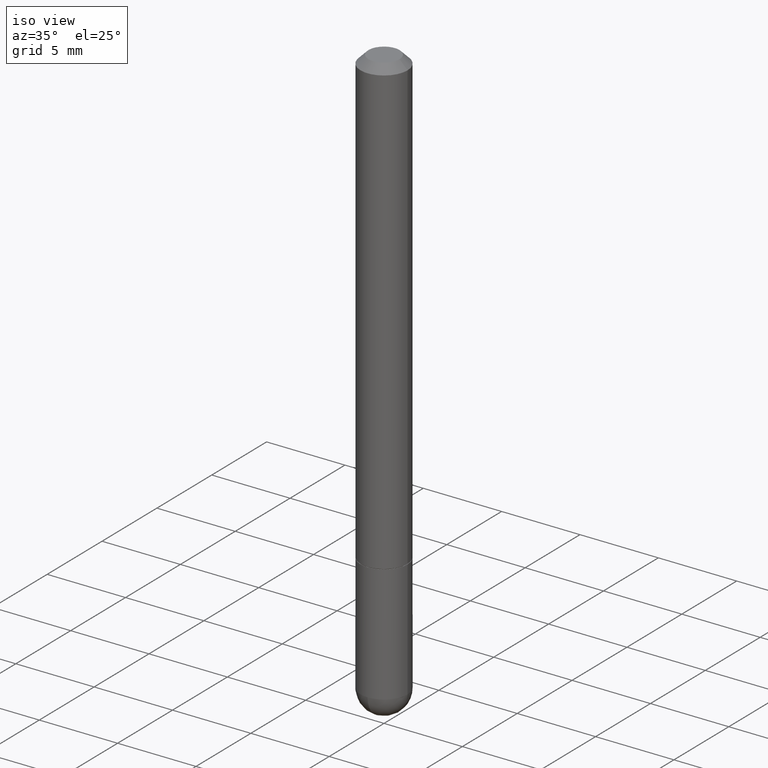
[diagram: clean part render]
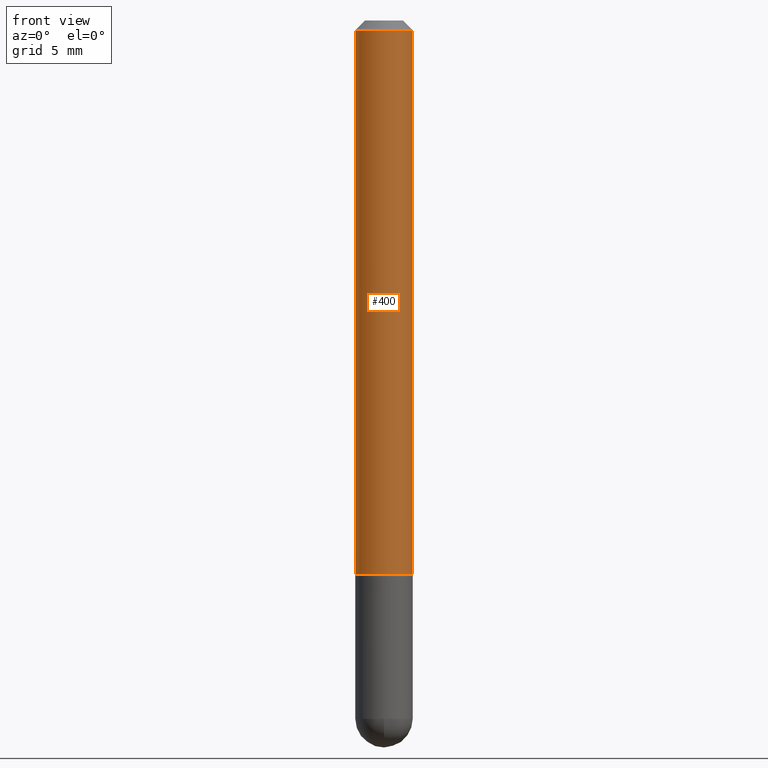
[diagram: tour spotlight — one face highlighted and labeled with its STEP entity id]
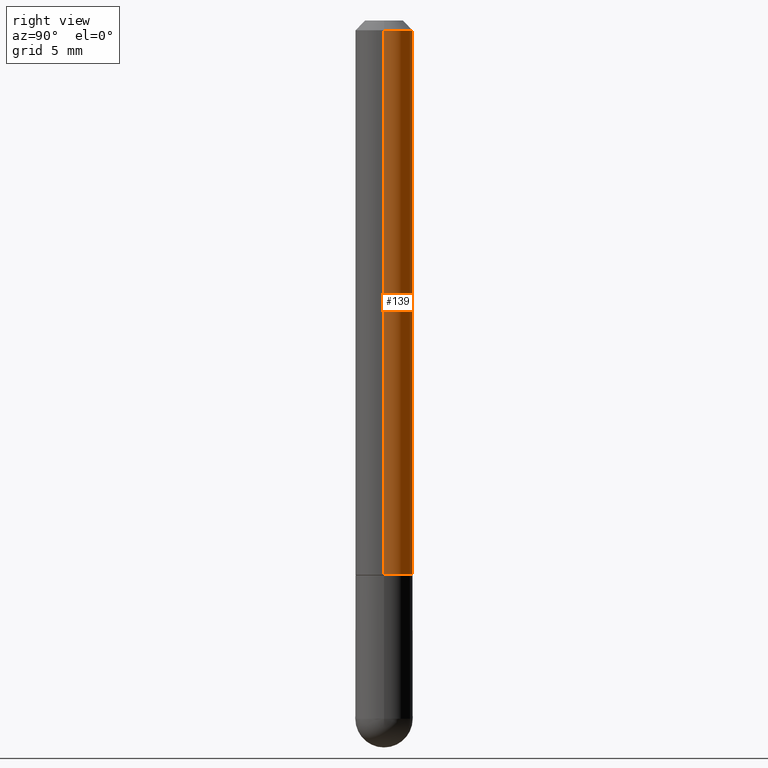
[diagram: tour spotlight — one face highlighted and labeled with its STEP entity id]
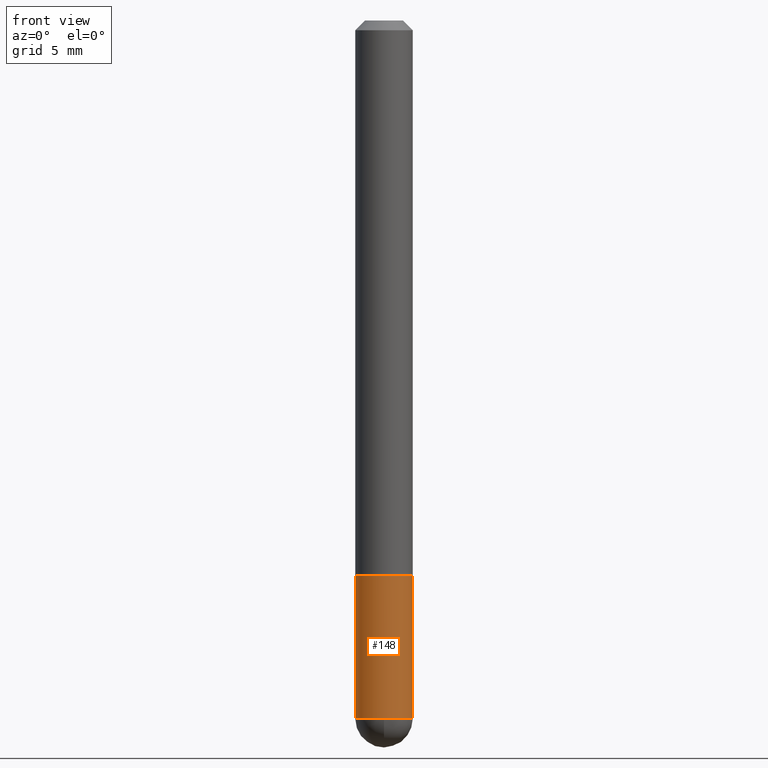
[diagram: tour spotlight — one face highlighted and labeled with its STEP entity id]
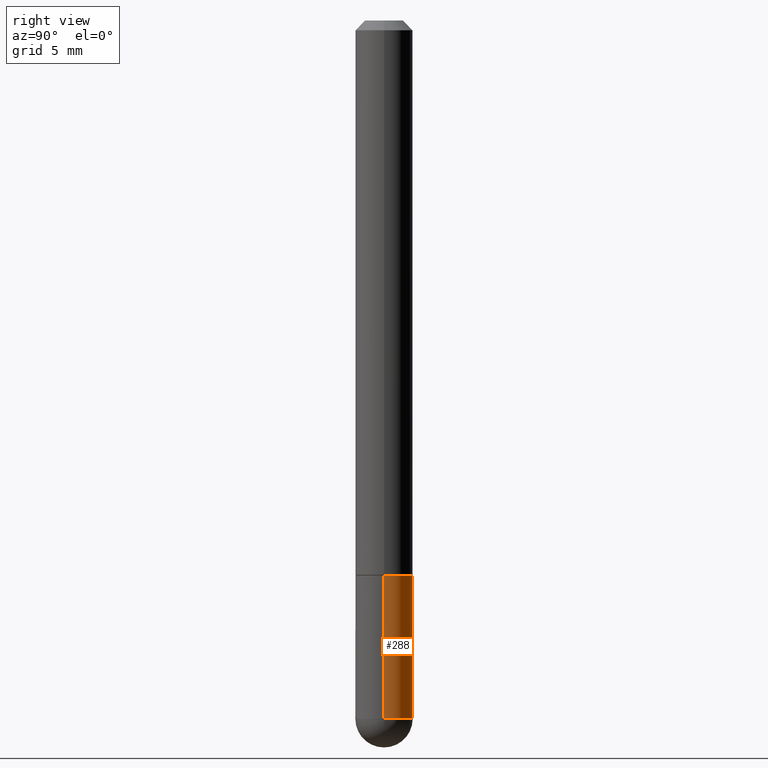
[diagram: tour spotlight — one face highlighted and labeled with its STEP entity id]
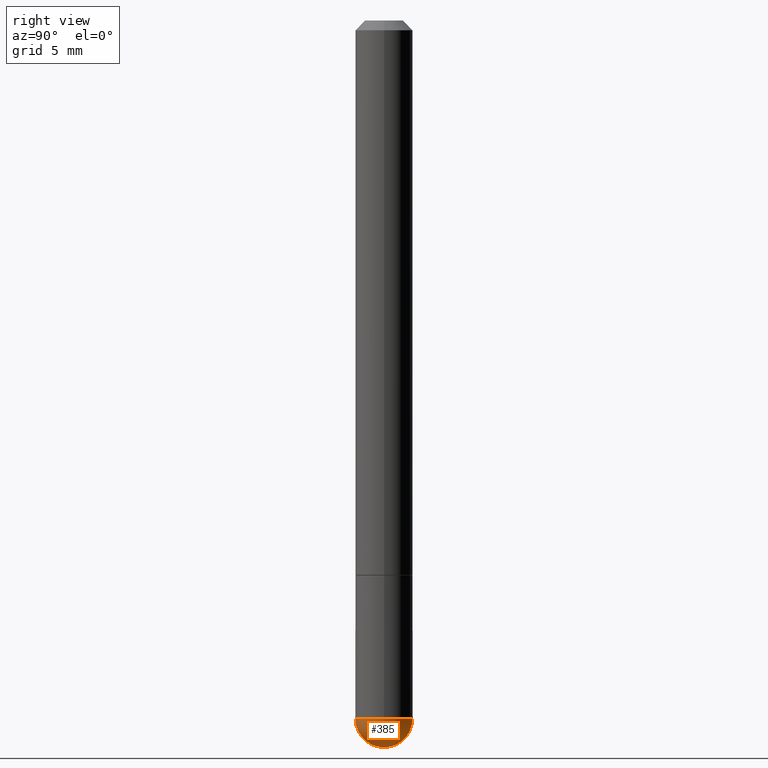
[diagram: tour spotlight — one face highlighted and labeled with its STEP entity id]
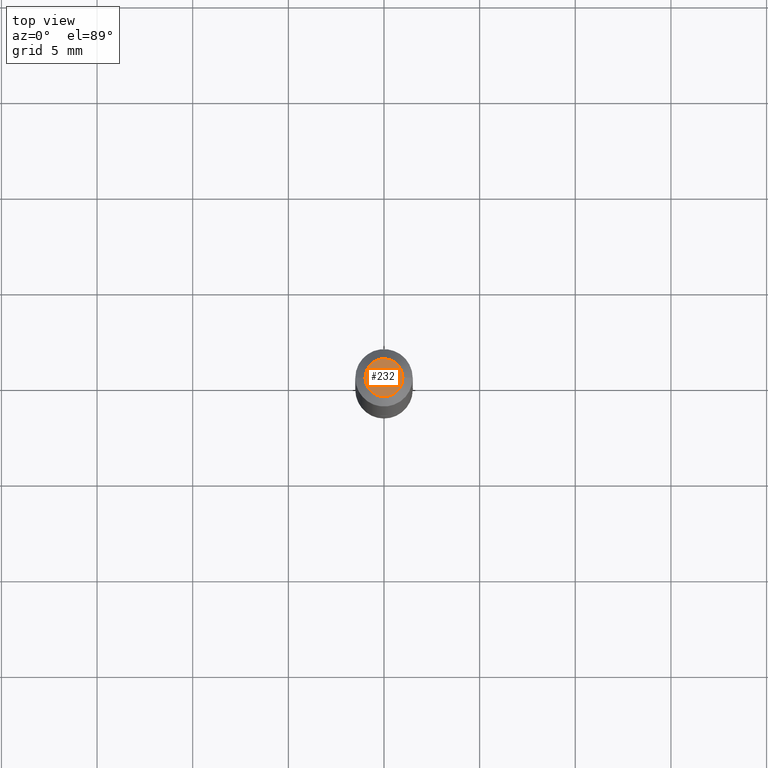
[diagram: tour spotlight — one face highlighted and labeled with its STEP entity id]
A machine part: a face-by-face anatomy tour. The part has 13 B-rep faces; the first image is the clean iso view, then the 6 largest visible faces are spotlighted one at a time (largest first), each with its STEP entity span.

Face 1 — front view, entity #400. In plain terms, the highlighted cylindrical surface (edge-blend (fillet) strip) has radius 1.4999 mm, axis along (-0, 0, 1).
Definition (entity closure, byte-faithful):
#2 = CARTESIAN_POINT ( 'NONE',  ( 4.890937612370278413E-31, -6.982962677686297772E-17, -0.02000000000000002123 ) ) ;
#5 = DIRECTION ( 'NONE',  ( -2.445468806185136597E-29, 3.491481338843145583E-15, 1.000000000000000000 ) ) ;
#15 = AXIS2_PLACEMENT_3D ( 'NONE', #45, #355, #172 ) ;
#45 = CARTESIAN_POINT ( 'NONE',  ( 0.000000000000000000, 0.000000000000000000, 0.000000000000000000 ) ) ;
#46 = EDGE_LOOP ( 'NONE', ( #337, #269, #118, #115 ) ) ;
#47 = CARTESIAN_POINT ( 'NONE',  ( 0.05905000000000006771, -4.123439461173745257E-16, 2.879382386107503723E-30 ) ) ;
#81 = EDGE_CURVE ( 'NONE', #310, #91, #186, .T. ) ;
#91 = VERTEX_POINT ( 'NONE', #254 ) ;
#96 = CIRCLE ( 'NONE', #109, 0.05905000000000000526 ) ;
#99 = LINE ( 'NONE', #47, #107 ) ;
#103 = FACE_OUTER_BOUND ( 'NONE', #46, .T. ) ;
#107 = VECTOR ( 'NONE', #174, 39.37007874015748143 ) ;
#109 = AXIS2_PLACEMENT_3D ( 'NONE', #2, #5, #379 ) ;
#115 = ORIENTED_EDGE ( 'NONE', *, *, #155, .F. ) ;
#118 = ORIENTED_EDGE ( 'NONE', *, *, #407, .T. ) ;
#130 = DIRECTION ( 'NONE',  ( 1.000000000000000000, -6.982962677686265133E-15, 0.000000000000000000 ) ) ;
#137 = CYLINDRICAL_SURFACE ( 'NONE', #15, 0.05905000000000006771 ) ;
#155 = EDGE_CURVE ( 'NONE', #156, #246, #96, .T. ) ;
#156 = VERTEX_POINT ( 'NONE', #349 ) ;
#172 = DIRECTION ( 'NONE',  ( 1.000000000000000000, -6.982962677686266711E-15, 4.876176775795936353E-29 ) ) ;
#174 = DIRECTION ( 'NONE',  ( -2.445468806185136877E-29, 3.491481338843145188E-15, 1.000000000000000000 ) ) ;
#177 = LINE ( 'NONE', #396, #382 ) ;
#186 = CIRCLE ( 'NONE', #250, 0.05905000000000013016 ) ;
#200 = DIRECTION ( 'NONE',  ( -2.445468806185136877E-29, 3.491481338843145188E-15, 1.000000000000000000 ) ) ;
#221 = EDGE_CURVE ( 'NONE', #310, #156, #177, .T. ) ;
#246 = VERTEX_POINT ( 'NONE', #363 ) ;
#250 = AXIS2_PLACEMENT_3D ( 'NONE', #352, #384, #130 ) ;
#254 = CARTESIAN_POINT ( 'NONE',  ( 0.05905000000000013016, -4.395425857469635235E-15, -1.140799999999999814 ) ) ;
#269 = ORIENTED_EDGE ( 'NONE', *, *, #81, .T. ) ;
#310 = VERTEX_POINT ( 'NONE', #326 ) ;
#326 = CARTESIAN_POINT ( 'NONE',  ( -0.05905000000000013710, -1.606880283598219355E-15, -1.140799999999999814 ) ) ;
#337 = ORIENTED_EDGE ( 'NONE', *, *, #221, .F. ) ;
#349 = CARTESIAN_POINT ( 'NONE',  ( -0.05905000000000000526, 3.425143193405111289E-16, -0.02000000000000002123 ) ) ;
#352 = CARTESIAN_POINT ( 'NONE',  ( 2.789790814096003463E-29, -3.983081911352260315E-15, -1.140799999999999814 ) ) ;
#355 = DIRECTION ( 'NONE',  ( -2.445468806185136597E-29, 3.491481338843145583E-15, 1.000000000000000000 ) ) ;
#363 = CARTESIAN_POINT ( 'NONE',  ( 0.05905000000000000526, -4.749420335452719692E-16, -0.02000000000000002123 ) ) ;
#379 = DIRECTION ( 'NONE',  ( 1.000000000000000000, -6.982962677686267499E-15, 0.000000000000000000 ) ) ;
#382 = VECTOR ( 'NONE', #200, 39.37007874015748143 ) ;
#384 = DIRECTION ( 'NONE',  ( -2.445468806185136597E-29, 3.491481338843145583E-15, 1.000000000000000000 ) ) ;
#396 = CARTESIAN_POINT ( 'NONE',  ( -0.05905000000000006771, 4.195754854663396409E-16, -2.904631170795525045E-30 ) ) ;
#400 = ADVANCED_FACE ( 'NONE', ( #103 ), #137, .T. ) ;
#407 = EDGE_CURVE ( 'NONE', #91, #246, #99, .T. ) ;

Face 2 — right view, entity #139. In plain terms, the highlighted cylindrical surface (edge-blend (fillet) strip) has radius 1.4999 mm, axis along (-0, 0, 1).
Definition (entity closure, byte-faithful):
#23 = ORIENTED_EDGE ( 'NONE', *, *, #278, .F. ) ;
#47 = CARTESIAN_POINT ( 'NONE',  ( 0.05905000000000006771, -4.123439461173745257E-16, 2.879382386107503723E-30 ) ) ;
#66 = CARTESIAN_POINT ( 'NONE',  ( 2.789790814096003463E-29, -3.983081911352260315E-15, -1.140799999999999814 ) ) ;
#67 = AXIS2_PLACEMENT_3D ( 'NONE', #167, #298, #101 ) ;
#76 = EDGE_LOOP ( 'NONE', ( #218, #185, #23, #120 ) ) ;
#91 = VERTEX_POINT ( 'NONE', #254 ) ;
#98 = CARTESIAN_POINT ( 'NONE',  ( 0.000000000000000000, 0.000000000000000000, 0.000000000000000000 ) ) ;
#99 = LINE ( 'NONE', #47, #107 ) ;
#101 = DIRECTION ( 'NONE',  ( 1.000000000000000000, -6.982962677686267499E-15, 0.000000000000000000 ) ) ;
#107 = VECTOR ( 'NONE', #174, 39.37007874015748143 ) ;
#120 = ORIENTED_EDGE ( 'NONE', *, *, #407, .F. ) ;
#139 = ADVANCED_FACE ( 'NONE', ( #291 ), #259, .T. ) ;
#156 = VERTEX_POINT ( 'NONE', #349 ) ;
#166 = EDGE_CURVE ( 'NONE', #91, #310, #180, .T. ) ;
#167 = CARTESIAN_POINT ( 'NONE',  ( 4.890937612370278413E-31, -6.982962677686297772E-17, -0.02000000000000002123 ) ) ;
#174 = DIRECTION ( 'NONE',  ( -2.445468806185136877E-29, 3.491481338843145188E-15, 1.000000000000000000 ) ) ;
#177 = LINE ( 'NONE', #396, #382 ) ;
#180 = CIRCLE ( 'NONE', #226, 0.05905000000000013016 ) ;
#185 = ORIENTED_EDGE ( 'NONE', *, *, #221, .T. ) ;
#200 = DIRECTION ( 'NONE',  ( -2.445468806185136877E-29, 3.491481338843145188E-15, 1.000000000000000000 ) ) ;
#218 = ORIENTED_EDGE ( 'NONE', *, *, #166, .T. ) ;
#221 = EDGE_CURVE ( 'NONE', #310, #156, #177, .T. ) ;
#226 = AXIS2_PLACEMENT_3D ( 'NONE', #66, #258, #257 ) ;
#242 = CIRCLE ( 'NONE', #67, 0.05905000000000000526 ) ;
#246 = VERTEX_POINT ( 'NONE', #363 ) ;
#254 = CARTESIAN_POINT ( 'NONE',  ( 0.05905000000000013016, -4.395425857469635235E-15, -1.140799999999999814 ) ) ;
#257 = DIRECTION ( 'NONE',  ( 1.000000000000000000, -6.982962677686265133E-15, 0.000000000000000000 ) ) ;
#258 = DIRECTION ( 'NONE',  ( -2.445468806185136597E-29, 3.491481338843145583E-15, 1.000000000000000000 ) ) ;
#259 = CYLINDRICAL_SURFACE ( 'NONE', #404, 0.05905000000000006771 ) ;
#278 = EDGE_CURVE ( 'NONE', #246, #156, #242, .T. ) ;
#286 = DIRECTION ( 'NONE',  ( -2.445468806185136597E-29, 3.491481338843145583E-15, 1.000000000000000000 ) ) ;
#290 = DIRECTION ( 'NONE',  ( 1.000000000000000000, -6.982962677686266711E-15, 4.876176775795936353E-29 ) ) ;
#291 = FACE_OUTER_BOUND ( 'NONE', #76, .T. ) ;
#298 = DIRECTION ( 'NONE',  ( -2.445468806185136597E-29, 3.491481338843145583E-15, 1.000000000000000000 ) ) ;
#310 = VERTEX_POINT ( 'NONE', #326 ) ;
#326 = CARTESIAN_POINT ( 'NONE',  ( -0.05905000000000013710, -1.606880283598219355E-15, -1.140799999999999814 ) ) ;
#349 = CARTESIAN_POINT ( 'NONE',  ( -0.05905000000000000526, 3.425143193405111289E-16, -0.02000000000000002123 ) ) ;
#363 = CARTESIAN_POINT ( 'NONE',  ( 0.05905000000000000526, -4.749420335452719692E-16, -0.02000000000000002123 ) ) ;
#382 = VECTOR ( 'NONE', #200, 39.37007874015748143 ) ;
#396 = CARTESIAN_POINT ( 'NONE',  ( -0.05905000000000006771, 4.195754854663396409E-16, -2.904631170795525045E-30 ) ) ;
#404 = AXIS2_PLACEMENT_3D ( 'NONE', #98, #286, #290 ) ;
#407 = EDGE_CURVE ( 'NONE', #91, #246, #99, .T. ) ;

Face 3 — front view, entity #148. In plain terms, the highlighted cylindrical surface (edge-blend (fillet) strip) has radius 1.4999 mm, axis along (-0, 0, 1).
Definition (entity closure, byte-faithful):
#6 = EDGE_CURVE ( 'NONE', #122, #216, #210, .T. ) ;
#26 = EDGE_CURVE ( 'NONE', #216, #305, #303, .T. ) ;
#28 = CARTESIAN_POINT ( 'NONE',  ( 3.514260947928350449E-29, -5.017433257984542594E-15, -1.437049999999999939 ) ) ;
#34 = DIRECTION ( 'NONE',  ( -2.445468806185136877E-29, 3.491481338843145188E-15, 1.000000000000000000 ) ) ;
#37 = EDGE_CURVE ( 'NONE', #122, #309, #409, .T. ) ;
#38 = AXIS2_PLACEMENT_3D ( 'NONE', #28, #306, #411 ) ;
#39 = CARTESIAN_POINT ( 'NONE',  ( -0.05905000000000001914, -4.082427839871483465E-15, -1.437049999999999939 ) ) ;
#56 = ORIENTED_EDGE ( 'NONE', *, *, #140, .T. ) ;
#62 = ORIENTED_EDGE ( 'NONE', *, *, #215, .F. ) ;
#78 = ORIENTED_EDGE ( 'NONE', *, *, #26, .T. ) ;
#117 = CIRCLE ( 'NONE', #289, 0.05904999999999999832 ) ;
#122 = VERTEX_POINT ( 'NONE', #39 ) ;
#123 = FACE_OUTER_BOUND ( 'NONE', #336, .T. ) ;
#127 = DIRECTION ( 'NONE',  ( -2.445468806185136597E-29, 3.491481338843145583E-15, 1.000000000000000000 ) ) ;
#131 = CARTESIAN_POINT ( 'NONE',  ( 2.792236282902188505E-29, -3.986573392691103322E-15, -1.141799999999999926 ) ) ;
#140 = EDGE_CURVE ( 'NONE', #305, #281, #222, .T. ) ;
#144 = CARTESIAN_POINT ( 'NONE',  ( 0.05904999999999999832, -4.398917338808476664E-15, -1.141799999999999926 ) ) ;
#148 = ADVANCED_FACE ( 'NONE', ( #123 ), #191, .T. ) ;
#154 = DIRECTION ( 'NONE',  ( -2.445468806185136597E-29, 3.491481338843145583E-15, 1.000000000000000000 ) ) ;
#158 = AXIS2_PLACEMENT_3D ( 'NONE', #287, #127, #315 ) ;
#159 = CARTESIAN_POINT ( 'NONE',  ( 0.05904999999999999832, -4.123439461173740327E-16, 2.879382386107500220E-30 ) ) ;
#164 = VECTOR ( 'NONE', #376, 39.37007874015748143 ) ;
#191 = CYLINDRICAL_SURFACE ( 'NONE', #158, 0.05904999999999999832 ) ;
#210 = CIRCLE ( 'NONE', #38, 0.05905000000000000526 ) ;
#215 = EDGE_CURVE ( 'NONE', #309, #281, #117, .T. ) ;
#216 = VERTEX_POINT ( 'NONE', #312 ) ;
#219 = DIRECTION ( 'NONE',  ( 1.000000000000000000, -6.982962677686265133E-15, 0.000000000000000000 ) ) ;
#222 = LINE ( 'NONE', #159, #283 ) ;
#276 = CARTESIAN_POINT ( 'NONE',  ( -0.05904999999999999832, 4.195754854663391478E-16, -2.904631170795521892E-30 ) ) ;
#280 = DIRECTION ( 'NONE',  ( 1.000000000000000000, -6.982962677686272233E-15, 0.000000000000000000 ) ) ;
#281 = VERTEX_POINT ( 'NONE', #144 ) ;
#283 = VECTOR ( 'NONE', #34, 39.37007874015748143 ) ;
#287 = CARTESIAN_POINT ( 'NONE',  ( 0.000000000000000000, 0.000000000000000000, 0.000000000000000000 ) ) ;
#289 = AXIS2_PLACEMENT_3D ( 'NONE', #131, #386, #219 ) ;
#295 = CARTESIAN_POINT ( 'NONE',  ( -0.05904999999999999832, -4.082427839871483465E-15, -1.141799999999999926 ) ) ;
#303 = CIRCLE ( 'NONE', #348, 0.05905000000000000526 ) ;
#305 = VERTEX_POINT ( 'NONE', #323 ) ;
#306 = DIRECTION ( 'NONE',  ( -2.445468806185136597E-29, 3.491481338843145583E-15, 1.000000000000000000 ) ) ;
#309 = VERTEX_POINT ( 'NONE', #295 ) ;
#312 = CARTESIAN_POINT ( 'NONE',  ( -4.195754854663065087E-16, -0.05905000000000538291, -1.437049999999999716 ) ) ;
#315 = DIRECTION ( 'NONE',  ( 1.000000000000000000, -6.982962677686266711E-15, 4.876176775795936353E-29 ) ) ;
#323 = CARTESIAN_POINT ( 'NONE',  ( 0.05905000000000001914, -4.914347271455197089E-15, -1.437049999999999939 ) ) ;
#336 = EDGE_LOOP ( 'NONE', ( #374, #406, #78, #56, #62 ) ) ;
#348 = AXIS2_PLACEMENT_3D ( 'NONE', #378, #154, #280 ) ;
#374 = ORIENTED_EDGE ( 'NONE', *, *, #37, .F. ) ;
#376 = DIRECTION ( 'NONE',  ( -2.445468806185136877E-29, 3.491481338843145188E-15, 1.000000000000000000 ) ) ;
#378 = CARTESIAN_POINT ( 'NONE',  ( 3.514260947928350449E-29, -5.017433257984542594E-15, -1.437049999999999939 ) ) ;
#386 = DIRECTION ( 'NONE',  ( -2.445468806185136597E-29, 3.491481338843145583E-15, 1.000000000000000000 ) ) ;
#406 = ORIENTED_EDGE ( 'NONE', *, *, #6, .T. ) ;
#409 = LINE ( 'NONE', #276, #164 ) ;
#411 = DIRECTION ( 'NONE',  ( 1.000000000000000000, -6.982962677686272233E-15, 0.000000000000000000 ) ) ;

Face 4 — right view, entity #288. In plain terms, the highlighted cylindrical surface (edge-blend (fillet) strip) has radius 1.4999 mm, axis along (-0, 0, 1).
Definition (entity closure, byte-faithful):
#3 = AXIS2_PLACEMENT_3D ( 'NONE', #77, #40, #393 ) ;
#18 = DIRECTION ( 'NONE',  ( 1.000000000000000000, -6.982962677686272233E-15, 0.000000000000000000 ) ) ;
#34 = DIRECTION ( 'NONE',  ( -2.445468806185136877E-29, 3.491481338843145188E-15, 1.000000000000000000 ) ) ;
#37 = EDGE_CURVE ( 'NONE', #122, #309, #409, .T. ) ;
#39 = CARTESIAN_POINT ( 'NONE',  ( -0.05905000000000001914, -4.082427839871483465E-15, -1.437049999999999939 ) ) ;
#40 = DIRECTION ( 'NONE',  ( -2.445468806185136597E-29, 3.491481338843145583E-15, 1.000000000000000000 ) ) ;
#43 = CIRCLE ( 'NONE', #359, 0.05905000000000000526 ) ;
#50 = ORIENTED_EDGE ( 'NONE', *, *, #51, .T. ) ;
#51 = EDGE_CURVE ( 'NONE', #299, #122, #317, .T. ) ;
#63 = ORIENTED_EDGE ( 'NONE', *, *, #140, .F. ) ;
#70 = DIRECTION ( 'NONE',  ( 1.000000000000000000, -6.982962677686265133E-15, 0.000000000000000000 ) ) ;
#77 = CARTESIAN_POINT ( 'NONE',  ( 0.000000000000000000, 0.000000000000000000, 0.000000000000000000 ) ) ;
#87 = ORIENTED_EDGE ( 'NONE', *, *, #152, .F. ) ;
#90 = CARTESIAN_POINT ( 'NONE',  ( 3.514260947928350449E-29, -5.017433257984542594E-15, -1.437049999999999939 ) ) ;
#110 = FACE_OUTER_BOUND ( 'NONE', #136, .T. ) ;
#122 = VERTEX_POINT ( 'NONE', #39 ) ;
#136 = EDGE_LOOP ( 'NONE', ( #50, #264, #87, #63, #146 ) ) ;
#140 = EDGE_CURVE ( 'NONE', #305, #281, #222, .T. ) ;
#144 = CARTESIAN_POINT ( 'NONE',  ( 0.05904999999999999832, -4.398917338808476664E-15, -1.141799999999999926 ) ) ;
#146 = ORIENTED_EDGE ( 'NONE', *, *, #392, .T. ) ;
#152 = EDGE_CURVE ( 'NONE', #281, #309, #334, .T. ) ;
#159 = CARTESIAN_POINT ( 'NONE',  ( 0.05904999999999999832, -4.123439461173740327E-16, 2.879382386107500220E-30 ) ) ;
#164 = VECTOR ( 'NONE', #376, 39.37007874015748143 ) ;
#181 = DIRECTION ( 'NONE',  ( 1.000000000000000000, -6.982962677686272233E-15, 0.000000000000000000 ) ) ;
#196 = CARTESIAN_POINT ( 'NONE',  ( 2.792236282902188505E-29, -3.986573392691103322E-15, -1.141799999999999926 ) ) ;
#197 = CARTESIAN_POINT ( 'NONE',  ( 4.123439461174083974E-16, 0.05904999999999487742, -1.437050000000000161 ) ) ;
#198 = CARTESIAN_POINT ( 'NONE',  ( 3.514260947928350449E-29, -5.017433257984542594E-15, -1.437049999999999939 ) ) ;
#222 = LINE ( 'NONE', #159, #283 ) ;
#227 = CYLINDRICAL_SURFACE ( 'NONE', #3, 0.05904999999999999832 ) ;
#264 = ORIENTED_EDGE ( 'NONE', *, *, #37, .T. ) ;
#276 = CARTESIAN_POINT ( 'NONE',  ( -0.05904999999999999832, 4.195754854663391478E-16, -2.904631170795521892E-30 ) ) ;
#281 = VERTEX_POINT ( 'NONE', #144 ) ;
#283 = VECTOR ( 'NONE', #34, 39.37007874015748143 ) ;
#288 = ADVANCED_FACE ( 'NONE', ( #110 ), #227, .T. ) ;
#295 = CARTESIAN_POINT ( 'NONE',  ( -0.05904999999999999832, -4.082427839871483465E-15, -1.141799999999999926 ) ) ;
#299 = VERTEX_POINT ( 'NONE', #197 ) ;
#305 = VERTEX_POINT ( 'NONE', #323 ) ;
#309 = VERTEX_POINT ( 'NONE', #295 ) ;
#313 = AXIS2_PLACEMENT_3D ( 'NONE', #90, #401, #181 ) ;
#317 = CIRCLE ( 'NONE', #313, 0.05905000000000000526 ) ;
#323 = CARTESIAN_POINT ( 'NONE',  ( 0.05905000000000001914, -4.914347271455197089E-15, -1.437049999999999939 ) ) ;
#334 = CIRCLE ( 'NONE', #369, 0.05904999999999999832 ) ;
#343 = DIRECTION ( 'NONE',  ( -2.445468806185136597E-29, 3.491481338843145583E-15, 1.000000000000000000 ) ) ;
#359 = AXIS2_PLACEMENT_3D ( 'NONE', #198, #361, #18 ) ;
#361 = DIRECTION ( 'NONE',  ( -2.445468806185136597E-29, 3.491481338843145583E-15, 1.000000000000000000 ) ) ;
#369 = AXIS2_PLACEMENT_3D ( 'NONE', #196, #343, #70 ) ;
#376 = DIRECTION ( 'NONE',  ( -2.445468806185136877E-29, 3.491481338843145188E-15, 1.000000000000000000 ) ) ;
#392 = EDGE_CURVE ( 'NONE', #305, #299, #43, .T. ) ;
#393 = DIRECTION ( 'NONE',  ( 1.000000000000000000, -6.982962677686266711E-15, 4.876176775795936353E-29 ) ) ;
#401 = DIRECTION ( 'NONE',  ( -2.445468806185136597E-29, 3.491481338843145583E-15, 1.000000000000000000 ) ) ;
#409 = LINE ( 'NONE', #276, #164 ) ;

Face 5 — right view, entity #385. In plain terms, the highlighted spherical surface has radius 1.4999 mm.
Definition (entity closure, byte-faithful):
#12 = DIRECTION ( 'NONE',  ( 6.982962677686266711E-15, 1.000000000000000000, 0.000000000000000000 ) ) ;
#18 = DIRECTION ( 'NONE',  ( 1.000000000000000000, -6.982962677686272233E-15, 0.000000000000000000 ) ) ;
#26 = EDGE_CURVE ( 'NONE', #216, #305, #303, .T. ) ;
#31 = AXIS2_PLACEMENT_3D ( 'NONE', #383, #318, #253 ) ;
#43 = CIRCLE ( 'NONE', #359, 0.05905000000000000526 ) ;
#69 = EDGE_CURVE ( 'NONE', #365, #216, #256, .T. ) ;
#74 = CARTESIAN_POINT ( 'NONE',  ( 3.183141170014464762E-29, -5.491615626124592102E-15, -1.437049999999999939 ) ) ;
#104 = ORIENTED_EDGE ( 'NONE', *, *, #26, .F. ) ;
#111 = ORIENTED_EDGE ( 'NONE', *, *, #375, .T. ) ;
#154 = DIRECTION ( 'NONE',  ( -2.445468806185136597E-29, 3.491481338843145583E-15, 1.000000000000000000 ) ) ;
#170 = AXIS2_PLACEMENT_3D ( 'NONE', #263, #204, #12 ) ;
#190 = ORIENTED_EDGE ( 'NONE', *, *, #392, .F. ) ;
#197 = CARTESIAN_POINT ( 'NONE',  ( 4.123439461174083974E-16, 0.05904999999999487742, -1.437050000000000161 ) ) ;
#198 = CARTESIAN_POINT ( 'NONE',  ( 3.514260947928350449E-29, -5.017433257984542594E-15, -1.437049999999999939 ) ) ;
#204 = DIRECTION ( 'NONE',  ( 1.000000000000000000, -6.982962677686265922E-15, 4.883557194083112340E-29 ) ) ;
#212 = ORIENTED_EDGE ( 'NONE', *, *, #69, .F. ) ;
#216 = VERTEX_POINT ( 'NONE', #312 ) ;
#253 = DIRECTION ( 'NONE',  ( -7.105427357601001070E-15, -1.000000000000000000, 0.000000000000000000 ) ) ;
#256 = CIRCLE ( 'NONE', #31, 0.05905000000000025506 ) ;
#261 = SPHERICAL_SURFACE ( 'NONE', #332, 0.05905000000000025506 ) ;
#263 = CARTESIAN_POINT ( 'NONE',  ( 3.183141170014464762E-29, -5.491615626124592102E-15, -1.437049999999999939 ) ) ;
#265 = CARTESIAN_POINT ( 'NONE',  ( 3.330070981488499955E-29, -5.694171829508798064E-15, -1.496100000000000207 ) ) ;
#280 = DIRECTION ( 'NONE',  ( 1.000000000000000000, -6.982962677686272233E-15, 0.000000000000000000 ) ) ;
#282 = CIRCLE ( 'NONE', #170, 0.05905000000000025506 ) ;
#299 = VERTEX_POINT ( 'NONE', #197 ) ;
#301 = DIRECTION ( 'NONE',  ( 6.982962677686265922E-15, 1.000000000000000000, -4.626330217890349615E-15 ) ) ;
#303 = CIRCLE ( 'NONE', #348, 0.05905000000000000526 ) ;
#305 = VERTEX_POINT ( 'NONE', #323 ) ;
#312 = CARTESIAN_POINT ( 'NONE',  ( -4.195754854663065087E-16, -0.05905000000000538291, -1.437049999999999716 ) ) ;
#318 = DIRECTION ( 'NONE',  ( -1.000000000000000000, 7.105427357601001070E-15, -4.926315508542082329E-29 ) ) ;
#323 = CARTESIAN_POINT ( 'NONE',  ( 0.05905000000000001914, -4.914347271455197089E-15, -1.437049999999999939 ) ) ;
#331 = FACE_OUTER_BOUND ( 'NONE', #372, .T. ) ;
#332 = AXIS2_PLACEMENT_3D ( 'NONE', #74, #390, #301 ) ;
#348 = AXIS2_PLACEMENT_3D ( 'NONE', #378, #154, #280 ) ;
#359 = AXIS2_PLACEMENT_3D ( 'NONE', #198, #361, #18 ) ;
#361 = DIRECTION ( 'NONE',  ( -2.445468806185136597E-29, 3.491481338843145583E-15, 1.000000000000000000 ) ) ;
#365 = VERTEX_POINT ( 'NONE', #265 ) ;
#372 = EDGE_LOOP ( 'NONE', ( #212, #111, #190, #104 ) ) ;
#375 = EDGE_CURVE ( 'NONE', #365, #299, #282, .T. ) ;
#378 = CARTESIAN_POINT ( 'NONE',  ( 3.514260947928350449E-29, -5.017433257984542594E-15, -1.437049999999999939 ) ) ;
#383 = CARTESIAN_POINT ( 'NONE',  ( 3.183141170014464762E-29, -5.491615626124592102E-15, -1.437049999999999939 ) ) ;
#385 = ADVANCED_FACE ( 'NONE', ( #331 ), #261, .T. ) ;
#390 = DIRECTION ( 'NONE',  ( -1.000000000000000000, 6.982962677686265922E-15, -4.883557194083112340E-29 ) ) ;
#392 = EDGE_CURVE ( 'NONE', #305, #299, #43, .T. ) ;

Face 6 — top view, entity #232. In plain terms, the highlighted planar face has unit normal (0, -0, -1).
Definition (entity closure, byte-faithful):
#42 = CARTESIAN_POINT ( 'NONE',  ( 0.03905000000000004301, -3.714222401791252845E-16, -1.280553747029901208E-17 ) ) ;
#49 = PLANE ( 'NONE',  #296 ) ;
#80 = CARTESIAN_POINT ( 'NONE',  ( 3.131554243005667043E-46, -4.471029511141352822E-32, -1.280553747030126465E-17 ) ) ;
#93 = DIRECTION ( 'NONE',  ( 1.000000000000000000, -6.982962677686266711E-15, 4.878561691827482436E-29 ) ) ;
#183 = EDGE_CURVE ( 'NONE', #243, #311, #324, .T. ) ;
#213 = AXIS2_PLACEMENT_3D ( 'NONE', #80, #231, #357 ) ;
#223 = DIRECTION ( 'NONE',  ( -2.445468806185136597E-29, 3.491481338843145583E-15, 1.000000000000000000 ) ) ;
#224 = CARTESIAN_POINT ( 'NONE',  ( 3.131554243005667043E-46, -4.471029511141352822E-32, -1.280553747030126465E-17 ) ) ;
#229 = CARTESIAN_POINT ( 'NONE',  ( -0.03905000000000004301, 3.075995059520800222E-16, -1.280553747030329227E-17 ) ) ;
#230 = EDGE_LOOP ( 'NONE', ( #321, #234 ) ) ;
#231 = DIRECTION ( 'NONE',  ( -2.445468806185136597E-29, 3.491481338843145583E-15, 1.000000000000000000 ) ) ;
#232 = ADVANCED_FACE ( 'NONE', ( #268 ), #49, .F. ) ;
#234 = ORIENTED_EDGE ( 'NONE', *, *, #327, .T. ) ;
#243 = VERTEX_POINT ( 'NONE', #229 ) ;
#262 = AXIS2_PLACEMENT_3D ( 'NONE', #224, #223, #93 ) ;
#268 = FACE_OUTER_BOUND ( 'NONE', #230, .T. ) ;
#292 = DIRECTION ( 'NONE',  ( -1.000000000000000000, 6.982962677686265922E-15, -4.876176775795935793E-29 ) ) ;
#296 = AXIS2_PLACEMENT_3D ( 'NONE', #320, #358, #292 ) ;
#311 = VERTEX_POINT ( 'NONE', #42 ) ;
#320 = CARTESIAN_POINT ( 'NONE',  ( 2.726846925636489647E-16, 0.03905000000000004301, -1.427451150169756154E-16 ) ) ;
#321 = ORIENTED_EDGE ( 'NONE', *, *, #183, .T. ) ;
#324 = CIRCLE ( 'NONE', #262, 0.03905000000000004301 ) ;
#327 = EDGE_CURVE ( 'NONE', #311, #243, #391, .T. ) ;
#357 = DIRECTION ( 'NONE',  ( 1.000000000000000000, -6.982962677686266711E-15, 4.878561691827482436E-29 ) ) ;
#358 = DIRECTION ( 'NONE',  ( 2.438088387897960049E-29, -3.491481338843145188E-15, -1.000000000000000000 ) ) ;
#391 = CIRCLE ( 'NONE', #213, 0.03905000000000004301 ) ;